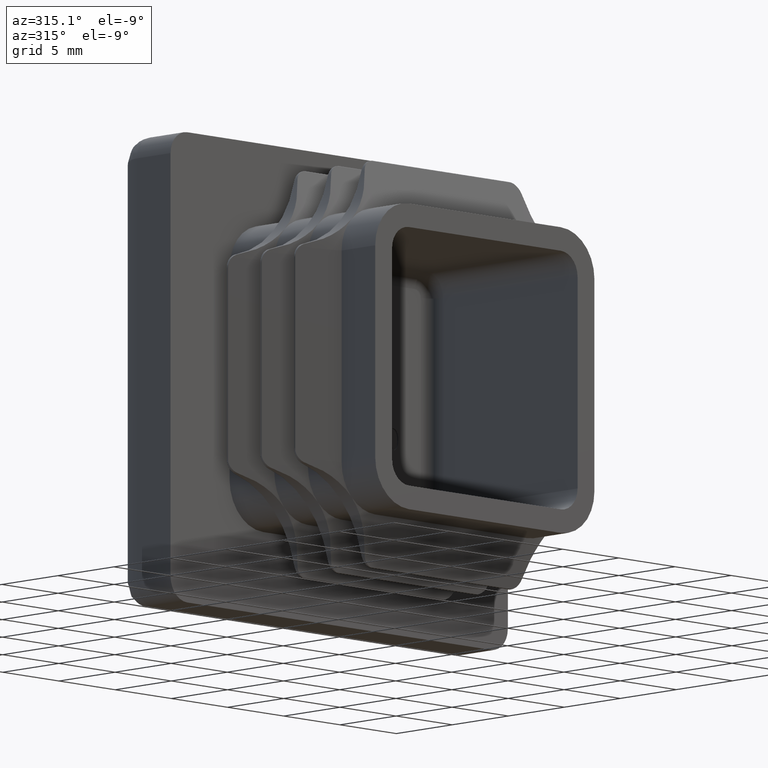
[diagram: clean part render]
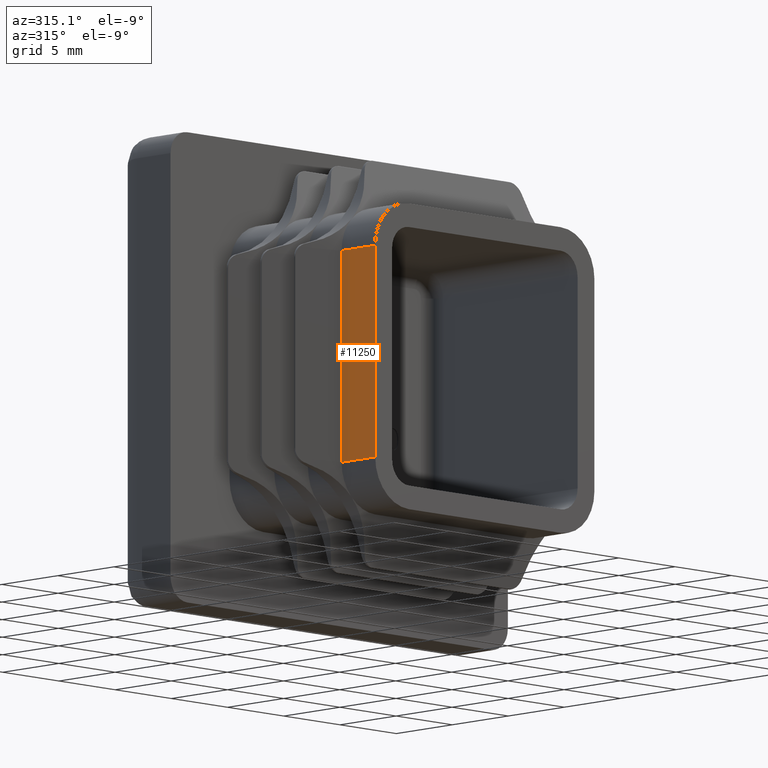
[diagram: same view with one face highlighted and labeled with its STEP entity id]
A machine part, auxiliary view. The second image highlights one B-rep face of the part: STEP entity #11250.
In plain terms, the highlighted planar face has unit normal (1, 0, 0).
Its self-contained STEP definition (entity closure, byte-faithful):
#1179 = VECTOR ( 'NONE', #12535, 1000.000000000000000 ) ;
#1317 = DIRECTION ( 'NONE',  ( -0.000000000000000000, 1.000000000000000000, -0.000000000000000000 ) ) ;
#1560 = DIRECTION ( 'NONE',  ( 0.000000000000000000, -0.000000000000000000, -1.000000000000000000 ) ) ;
#2741 = EDGE_LOOP ( 'NONE', ( #4036, #19476, #20078, #10360 ) ) ;
#2984 = CARTESIAN_POINT ( 'NONE',  ( -9.749999999999991118, -10.00000000000001954, -6.749999999999992895 ) ) ;
#3213 = EDGE_CURVE ( 'NONE', #9252, #19635, #6249, .T. ) ;
#3533 = CARTESIAN_POINT ( 'NONE',  ( -9.749999999999994671, -13.00000000000000000, 6.749999999999999112 ) ) ;
#4036 = ORIENTED_EDGE ( 'NONE', *, *, #16959, .F. ) ;
#4117 = CARTESIAN_POINT ( 'NONE',  ( -9.749999999999994671, -13.00000000000000000, 6.749999999999999112 ) ) ;
#4395 = EDGE_CURVE ( 'NONE', #10826, #6201, #4512, .T. ) ;
#4512 = LINE ( 'NONE', #14320, #9452 ) ;
#4567 = CARTESIAN_POINT ( 'NONE',  ( -9.749999999999994671, -13.00000000000000000, 6.749999999999999112 ) ) ;
#4773 = VECTOR ( 'NONE', #1317, 1000.000000000000000 ) ;
#5128 = DIRECTION ( 'NONE',  ( -0.000000000000000000, 1.000000000000000000, -0.000000000000000000 ) ) ;
#6201 = VERTEX_POINT ( 'NONE', #2984 ) ;
#6249 = LINE ( 'NONE', #4117, #4773 ) ;
#7142 = CARTESIAN_POINT ( 'NONE',  ( -9.749999999999994671, -13.00000000000000000, 6.749999999999999112 ) ) ;
#9171 = AXIS2_PLACEMENT_3D ( 'NONE', #7142, #19604, #15014 ) ;
#9252 = VERTEX_POINT ( 'NONE', #3533 ) ;
#9282 = LINE ( 'NONE', #4567, #15692 ) ;
#9452 = VECTOR ( 'NONE', #5128, 1000.000000000000000 ) ;
#10360 = ORIENTED_EDGE ( 'NONE', *, *, #3213, .T. ) ;
#10623 = EDGE_CURVE ( 'NONE', #9252, #10826, #9282, .T. ) ;
#10826 = VERTEX_POINT ( 'NONE', #19140 ) ;
#11250 = ADVANCED_FACE ( 'NONE', ( #12216 ), #16330, .F. ) ;
#11743 = CARTESIAN_POINT ( 'NONE',  ( -9.749999999999994671, -10.00000000000001954, 6.749999999999999112 ) ) ;
#12216 = FACE_OUTER_BOUND ( 'NONE', #2741, .T. ) ;
#12535 = DIRECTION ( 'NONE',  ( 0.000000000000000000, 0.000000000000000000, 1.000000000000000000 ) ) ;
#14300 = LINE ( 'NONE', #15851, #1179 ) ;
#14320 = CARTESIAN_POINT ( 'NONE',  ( -9.749999999999991118, -13.00000000000000000, -6.749999999999992895 ) ) ;
#15014 = DIRECTION ( 'NONE',  ( 0.000000000000000000, 0.000000000000000000, -1.000000000000000000 ) ) ;
#15692 = VECTOR ( 'NONE', #1560, 1000.000000000000000 ) ;
#15851 = CARTESIAN_POINT ( 'NONE',  ( -9.750000000000051514, -10.00000000000000178, -6.749999999999992895 ) ) ;
#16330 = PLANE ( 'NONE',  #9171 ) ;
#16959 = EDGE_CURVE ( 'NONE', #6201, #19635, #14300, .T. ) ;
#19140 = CARTESIAN_POINT ( 'NONE',  ( -9.749999999999991118, -13.00000000000000000, -6.749999999999992895 ) ) ;
#19476 = ORIENTED_EDGE ( 'NONE', *, *, #4395, .F. ) ;
#19604 = DIRECTION ( 'NONE',  ( 1.000000000000000000, 0.000000000000000000, 0.000000000000000000 ) ) ;
#19635 = VERTEX_POINT ( 'NONE', #11743 ) ;
#20078 = ORIENTED_EDGE ( 'NONE', *, *, #10623, .F. ) ;